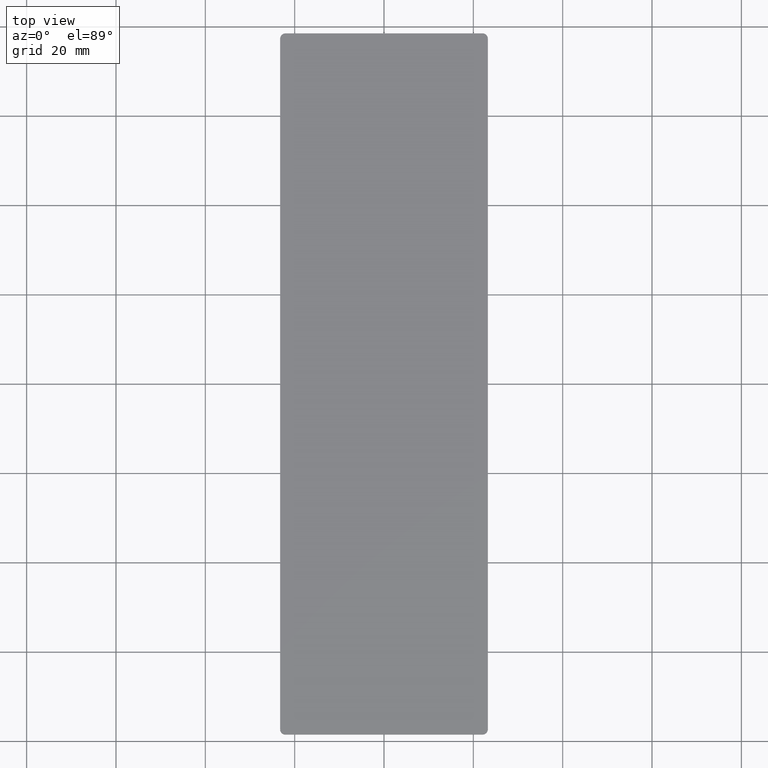
[diagram: clean part render]
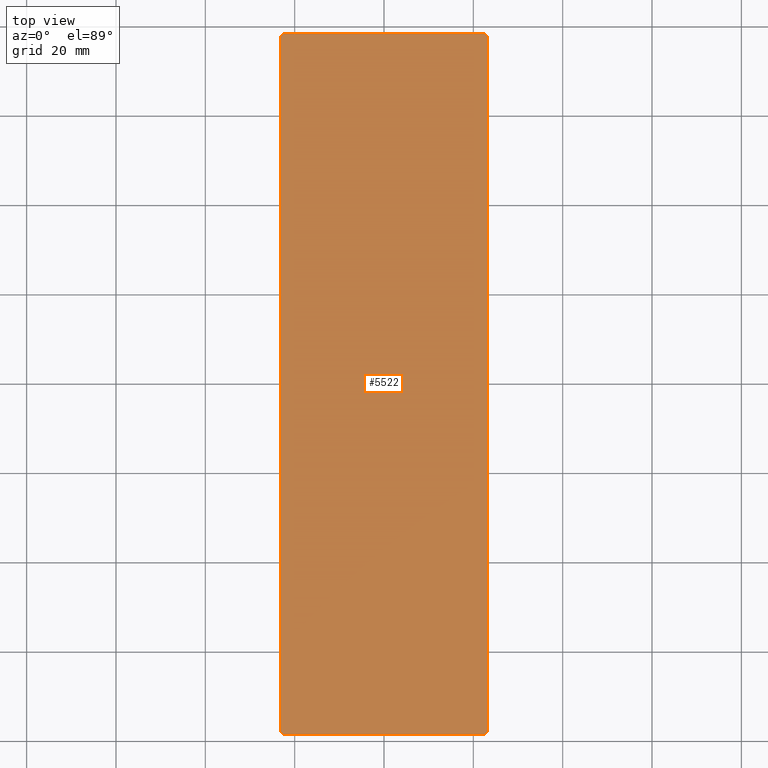
[diagram: same view with one face highlighted and labeled with its STEP entity id]
A machine part, top view. The second image highlights one B-rep face of the part: STEP entity #5522.
In plain terms, the highlighted planar face has unit normal (-0, 0, 1).
Its self-contained STEP definition (entity closure, byte-faithful):
#204 = DIRECTION ( 'NONE',  ( 1.000000000000000000, 0.0000000000000000000, 0.0000000000000000000 ) ) ;
#419 = CARTESIAN_POINT ( 'NONE',  ( 22.04999999999997600, 78.50000000000000000, 1.500000000000000000 ) ) ;
#561 = CARTESIAN_POINT ( 'NONE',  ( -23.24999999999998900, -77.29999999999999700, 1.500000000000000000 ) ) ;
#1673 = CARTESIAN_POINT ( 'NONE',  ( 23.24999999999998900, 77.29999999999999700, 1.500000000000000000 ) ) ;
#1735 = CIRCLE ( 'NONE', #2022, 1.199999999999999700 ) ;
#1975 = ORIENTED_EDGE ( 'NONE', *, *, #13154, .T. ) ;
#2022 = AXIS2_PLACEMENT_3D ( 'NONE', #10292, #8410, #10427 ) ;
#2059 = CARTESIAN_POINT ( 'NONE',  ( -22.05000000000001100, 78.50000000000000000, 1.500000000000000000 ) ) ;
#2183 = ORIENTED_EDGE ( 'NONE', *, *, #8700, .T. ) ;
#2391 = AXIS2_PLACEMENT_3D ( 'NONE', #5933, #3599, #3646 ) ;
#2632 = ORIENTED_EDGE ( 'NONE', *, *, #9340, .T. ) ;
#2859 = CIRCLE ( 'NONE', #13487, 1.199999999999999700 ) ;
#2895 = DIRECTION ( 'NONE',  ( -0.0000000000000000000, 0.0000000000000000000, 1.000000000000000000 ) ) ;
#3018 = ORIENTED_EDGE ( 'NONE', *, *, #13542, .T. ) ;
#3083 = DIRECTION ( 'NONE',  ( -0.0000000000000000000, 0.0000000000000000000, 1.000000000000000000 ) ) ;
#3088 = VECTOR ( 'NONE', #6534, 1000.000000000000000 ) ;
#3208 = EDGE_LOOP ( 'NONE', ( #3484, #2632, #2183, #12632, #1975, #4818, #11335, #3018 ) ) ;
#3294 = DIRECTION ( 'NONE',  ( 1.325903293740234800E-016, -1.000000000000000000, 0.0000000000000000000 ) ) ;
#3377 = CARTESIAN_POINT ( 'NONE',  ( -22.04999999999999000, -77.29999999999999700, 1.500000000000000000 ) ) ;
#3416 = DIRECTION ( 'NONE',  ( 1.000000000000000000, 0.0000000000000000000, 0.0000000000000000000 ) ) ;
#3484 = ORIENTED_EDGE ( 'NONE', *, *, #11180, .F. ) ;
#3599 = DIRECTION ( 'NONE',  ( -0.0000000000000000000, 0.0000000000000000000, 1.000000000000000000 ) ) ;
#3636 = VERTEX_POINT ( 'NONE', #6028 ) ;
#3646 = DIRECTION ( 'NONE',  ( 1.000000000000000000, 0.0000000000000000000, 0.0000000000000000000 ) ) ;
#3848 = EDGE_CURVE ( 'NONE', #3636, #8468, #5266, .T. ) ;
#4197 = CARTESIAN_POINT ( 'NONE',  ( 0.0000000000000000000, 0.0000000000000000000, 1.500000000000000000 ) ) ;
#4365 = CARTESIAN_POINT ( 'NONE',  ( 23.24999999999998900, 78.50000000000000000, 1.500000000000000000 ) ) ;
#4750 = FACE_OUTER_BOUND ( 'NONE', #3208, .T. ) ;
#4818 = ORIENTED_EDGE ( 'NONE', *, *, #3848, .T. ) ;
#4989 = LINE ( 'NONE', #6031, #13250 ) ;
#5131 = DIRECTION ( 'NONE',  ( 1.000000000000000000, 0.0000000000000000000, 0.0000000000000000000 ) ) ;
#5266 = CIRCLE ( 'NONE', #11435, 1.199999999999999700 ) ;
#5522 = ADVANCED_FACE ( 'NONE', ( #4750 ), #11603, .T. ) ;
#5933 = CARTESIAN_POINT ( 'NONE',  ( -22.05000000000001100, 77.29999999999999700, 1.500000000000000000 ) ) ;
#6028 = CARTESIAN_POINT ( 'NONE',  ( 22.04999999999999700, -78.50000000000000000, 1.500000000000000000 ) ) ;
#6031 = CARTESIAN_POINT ( 'NONE',  ( -23.25000000000001100, 78.50000000000000000, 1.500000000000000000 ) ) ;
#6133 = CARTESIAN_POINT ( 'NONE',  ( 23.25000000000001100, -77.29999999999999700, 1.500000000000000000 ) ) ;
#6135 = VERTEX_POINT ( 'NONE', #2059 ) ;
#6267 = EDGE_CURVE ( 'NONE', #10807, #8468, #11975, .T. ) ;
#6491 = DIRECTION ( 'NONE',  ( -0.0000000000000000000, 0.0000000000000000000, 1.000000000000000000 ) ) ;
#6534 = DIRECTION ( 'NONE',  ( 1.000000000000000000, 0.0000000000000000000, 0.0000000000000000000 ) ) ;
#6703 = EDGE_CURVE ( 'NONE', #10553, #7642, #2859, .T. ) ;
#6928 = LINE ( 'NONE', #9550, #3088 ) ;
#7305 = CIRCLE ( 'NONE', #2391, 1.199999999999999700 ) ;
#7402 = CARTESIAN_POINT ( 'NONE',  ( -22.04999999999999000, -78.50000000000000000, 1.500000000000000000 ) ) ;
#7642 = VERTEX_POINT ( 'NONE', #7402 ) ;
#8182 = VECTOR ( 'NONE', #3294, 1000.000000000000000 ) ;
#8235 = DIRECTION ( 'NONE',  ( 1.000000000000000000, 0.0000000000000000000, 0.0000000000000000000 ) ) ;
#8410 = DIRECTION ( 'NONE',  ( -0.0000000000000000000, 0.0000000000000000000, 1.000000000000000000 ) ) ;
#8468 = VERTEX_POINT ( 'NONE', #6133 ) ;
#8700 = EDGE_CURVE ( 'NONE', #9248, #10553, #4989, .T. ) ;
#9063 = CARTESIAN_POINT ( 'NONE',  ( -23.25000000000001100, 77.29999999999999700, 1.500000000000000000 ) ) ;
#9248 = VERTEX_POINT ( 'NONE', #9063 ) ;
#9340 = EDGE_CURVE ( 'NONE', #6135, #9248, #7305, .T. ) ;
#9504 = CARTESIAN_POINT ( 'NONE',  ( -23.25000000000001100, 78.50000000000000000, 1.500000000000000000 ) ) ;
#9550 = CARTESIAN_POINT ( 'NONE',  ( -23.24999999999998900, -78.50000000000000000, 1.500000000000000000 ) ) ;
#10059 = VECTOR ( 'NONE', #204, 1000.000000000000000 ) ;
#10292 = CARTESIAN_POINT ( 'NONE',  ( 22.04999999999999000, 77.29999999999999700, 1.500000000000000000 ) ) ;
#10390 = CARTESIAN_POINT ( 'NONE',  ( 22.05000000000001100, -77.29999999999999700, 1.500000000000000000 ) ) ;
#10427 = DIRECTION ( 'NONE',  ( 1.000000000000000000, 0.0000000000000000000, 0.0000000000000000000 ) ) ;
#10516 = VERTEX_POINT ( 'NONE', #419 ) ;
#10553 = VERTEX_POINT ( 'NONE', #561 ) ;
#10807 = VERTEX_POINT ( 'NONE', #1673 ) ;
#11180 = EDGE_CURVE ( 'NONE', #6135, #10516, #11234, .T. ) ;
#11195 = DIRECTION ( 'NONE',  ( 1.325903293740234800E-016, -1.000000000000000000, 0.0000000000000000000 ) ) ;
#11234 = LINE ( 'NONE', #9504, #10059 ) ;
#11268 = AXIS2_PLACEMENT_3D ( 'NONE', #4197, #2895, #8235 ) ;
#11335 = ORIENTED_EDGE ( 'NONE', *, *, #6267, .F. ) ;
#11435 = AXIS2_PLACEMENT_3D ( 'NONE', #10390, #3083, #5131 ) ;
#11603 = PLANE ( 'NONE',  #11268 ) ;
#11975 = LINE ( 'NONE', #4365, #8182 ) ;
#12632 = ORIENTED_EDGE ( 'NONE', *, *, #6703, .T. ) ;
#13154 = EDGE_CURVE ( 'NONE', #7642, #3636, #6928, .T. ) ;
#13250 = VECTOR ( 'NONE', #11195, 1000.000000000000000 ) ;
#13487 = AXIS2_PLACEMENT_3D ( 'NONE', #3377, #6491, #3416 ) ;
#13542 = EDGE_CURVE ( 'NONE', #10807, #10516, #1735, .T. ) ;